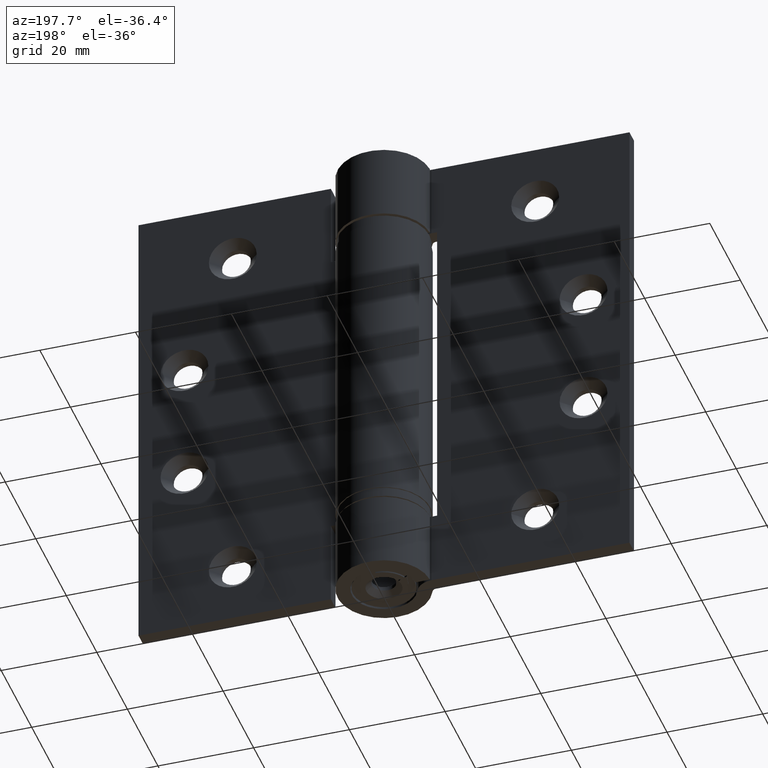
[diagram: clean part render]
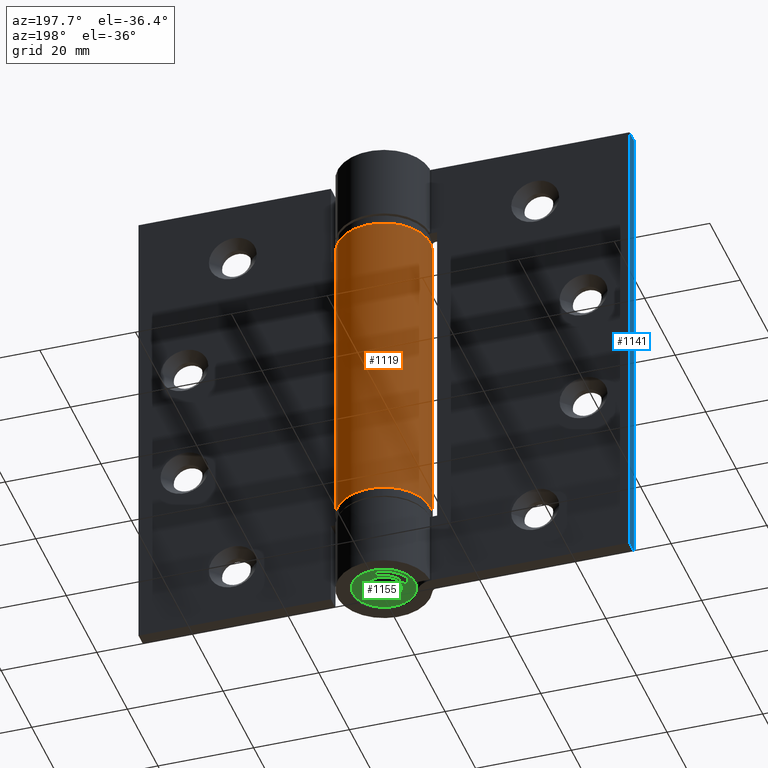
[diagram: same view with three faces highlighted in distinct colors, each labeled with its STEP entity id]
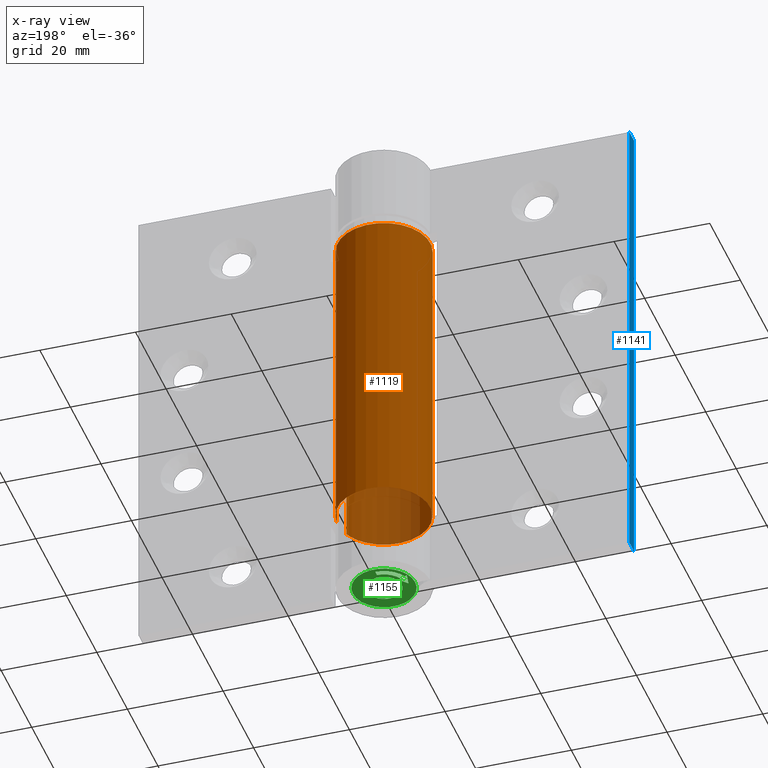
[diagram: x-ray of the same camera — body ghosted, the three highlighted faces saturated]
A machine part, auxiliary view with three faces highlighted in distinct colors.
The next image is the same camera in x-ray (body ghosted, the three faces saturated) — at least one of them is partly hidden behind the body in this view.
Their STEP definitions:

[orange] entity #1119 — the highlighted cylindrical surface (partial cylindrical patch) has radius 9.7 mm, axis along (0, 0, 1).
#125=CYLINDRICAL_SURFACE('',#1213,9.7);
#147=CIRCLE('',#1176,9.7);
#150=CIRCLE('',#1181,9.7);
#229=FACE_OUTER_BOUND('',#313,.T.);
#313=EDGE_LOOP('',(#878,#879,#880,#881));
#411=LINE('',#1782,#488);
#414=LINE('',#1788,#491);
#488=VECTOR('',#1418,65.3);
#491=VECTOR('',#1427,65.3);
#548=VERTEX_POINT('',#1700);
#549=VERTEX_POINT('',#1702);
#556=VERTEX_POINT('',#1719);
#557=VERTEX_POINT('',#1721);
#654=EDGE_CURVE('',#549,#548,#147,.T.);
#663=EDGE_CURVE('',#557,#556,#150,.T.);
#690=EDGE_CURVE('',#548,#557,#411,.T.);
#693=EDGE_CURVE('',#556,#549,#414,.T.);
#878=ORIENTED_EDGE('',*,*,#654,.T.);
#879=ORIENTED_EDGE('',*,*,#690,.T.);
#880=ORIENTED_EDGE('',*,*,#663,.T.);
#881=ORIENTED_EDGE('',*,*,#693,.T.);
#1119=ADVANCED_FACE('',(#229),#125,.T.);
#1176=AXIS2_PLACEMENT_3D('',#1703,#1332,#1333);
#1181=AXIS2_PLACEMENT_3D('',#1722,#1348,#1349);
#1213=AXIS2_PLACEMENT_3D('',#1789,#1428,#1429);
#1332=DIRECTION('center_axis',(0.,0.,-1.));
#1333=DIRECTION('ref_axis',(0.999390827019096,0.0348994967025013,0.));
#1348=DIRECTION('center_axis',(0.,0.,1.));
#1349=DIRECTION('ref_axis',(0.999390827019096,0.0348994967025013,0.));
#1418=DIRECTION('',(0.,0.,-1.));
#1427=DIRECTION('',(0.,0.,1.));
#1428=DIRECTION('center_axis',(0.,0.,1.));
#1429=DIRECTION('ref_axis',(-0.984880210934085,0.173236745843461,0.));
#1700=CARTESIAN_POINT('',(9.69409102208523,0.338525118014262,32.65));
#1702=CARTESIAN_POINT('',(8.99671629035193,-3.62616822429907,32.65));
#1703=CARTESIAN_POINT('Origin',(0.,0.,32.65));
#1719=CARTESIAN_POINT('',(8.99671629035193,-3.62616822429907,-32.65));
#1721=CARTESIAN_POINT('',(9.69409102208523,0.338525118014262,-32.65));
#1722=CARTESIAN_POINT('Origin',(0.,0.,-32.65));
#1782=CARTESIAN_POINT('',(9.69409102208523,0.338525118014262,0.));
#1788=CARTESIAN_POINT('',(8.99671629035193,-3.62616822429907,0.));
#1789=CARTESIAN_POINT('Origin',(0.,0.,0.));

[blue] entity #1141 — the highlighted planar face has unit normal (-1, -0, -0).
#251=FACE_OUTER_BOUND('',#347,.T.);
#347=EDGE_LOOP('',(#970,#971,#972,#973));
#427=LINE('',#1834,#504);
#440=LINE('',#1906,#517);
#442=LINE('',#1912,#519);
#443=LINE('',#1913,#520);
#504=VECTOR('',#1468,101.5);
#517=VECTOR('',#1553,3.);
#519=VECTOR('',#1559,3.);
#520=VECTOR('',#1560,101.5);
#594=VERTEX_POINT('',#1831);
#595=VERTEX_POINT('',#1833);
#618=VERTEX_POINT('',#1905);
#620=VERTEX_POINT('',#1911);
#714=EDGE_CURVE('',#595,#594,#427,.T.);
#746=EDGE_CURVE('',#595,#618,#440,.T.);
#749=EDGE_CURVE('',#620,#594,#442,.T.);
#750=EDGE_CURVE('',#618,#620,#443,.T.);
#970=ORIENTED_EDGE('',*,*,#714,.T.);
#971=ORIENTED_EDGE('',*,*,#749,.F.);
#972=ORIENTED_EDGE('',*,*,#750,.F.);
#973=ORIENTED_EDGE('',*,*,#746,.F.);
#1083=PLANE('',#1264);
#1141=ADVANCED_FACE('',(#251),#1083,.T.);
#1264=AXIS2_PLACEMENT_3D('',#1910,#1557,#1558);
#1468=DIRECTION('',(0.,0.,1.));
#1553=DIRECTION('',(0.,-1.,0.));
#1557=DIRECTION('center_axis',(1.,0.,0.));
#1558=DIRECTION('ref_axis',(0.,1.,0.));
#1559=DIRECTION('',(0.,1.,0.));
#1560=DIRECTION('',(0.,0.,1.));
#1831=CARTESIAN_POINT('',(51.3,3.60822483003176E-15,50.75));
#1833=CARTESIAN_POINT('',(51.3,3.60822483003176E-15,-50.75));
#1834=CARTESIAN_POINT('',(51.3,3.62301706460752E-15,0.));
#1905=CARTESIAN_POINT('',(51.3,-3.,-50.75));
#1906=CARTESIAN_POINT('',(51.3,-3.,-50.75));
#1910=CARTESIAN_POINT('Origin',(51.3,-3.,0.));
#1911=CARTESIAN_POINT('',(51.3,-3.,50.75));
#1912=CARTESIAN_POINT('',(51.3,-3.,50.75));
#1913=CARTESIAN_POINT('',(51.3,-3.,0.));

[green] entity #1155 — the highlighted planar face has unit normal (0, -0, -1).
#114=FACE_BOUND('',#373,.T.);
#115=FACE_BOUND('',#374,.T.);
#200=CIRCLE('',#1287,3.7);
#202=CIRCLE('',#1291,6.5);
#203=CIRCLE('',#1292,4.55);
#204=CIRCLE('',#1293,5.65);
#265=FACE_OUTER_BOUND('',#372,.T.);
#372=EDGE_LOOP('',(#1018));
#373=EDGE_LOOP('',(#1019,#1020,#1021,#1022,#1023,#1024,#1025));
#374=EDGE_LOOP('',(#1026));
#447=LINE('',#1956,#524);
#448=LINE('',#1958,#525);
#449=LINE('',#1962,#526);
#450=LINE('',#1966,#527);
#451=LINE('',#1967,#528);
#524=VECTOR('',#1618,2.29432213469809);
#525=VECTOR('',#1619,0.600000000000006);
#526=VECTOR('',#1622,1.1);
#527=VECTOR('',#1625,0.600000000000005);
#528=VECTOR('',#1626,2.74934804060223);
#628=VERTEX_POINT('',#1946);
#630=VERTEX_POINT('',#1952);
#631=VERTEX_POINT('',#1954);
#632=VERTEX_POINT('',#1955);
#633=VERTEX_POINT('',#1957);
#634=VERTEX_POINT('',#1959);
#635=VERTEX_POINT('',#1961);
#636=VERTEX_POINT('',#1963);
#637=VERTEX_POINT('',#1965);
#761=EDGE_CURVE('',#628,#628,#200,.T.);
#763=EDGE_CURVE('',#630,#630,#202,.T.);
#764=EDGE_CURVE('',#631,#632,#447,.T.);
#765=EDGE_CURVE('',#632,#633,#448,.T.);
#766=EDGE_CURVE('',#633,#634,#203,.T.);
#767=EDGE_CURVE('',#634,#635,#449,.T.);
#768=EDGE_CURVE('',#635,#636,#204,.T.);
#769=EDGE_CURVE('',#636,#637,#450,.T.);
#770=EDGE_CURVE('',#637,#631,#451,.T.);
#1018=ORIENTED_EDGE('',*,*,#763,.T.);
#1019=ORIENTED_EDGE('',*,*,#764,.T.);
#1020=ORIENTED_EDGE('',*,*,#765,.T.);
#1021=ORIENTED_EDGE('',*,*,#766,.T.);
#1022=ORIENTED_EDGE('',*,*,#767,.T.);
#1023=ORIENTED_EDGE('',*,*,#768,.T.);
#1024=ORIENTED_EDGE('',*,*,#769,.T.);
#1025=ORIENTED_EDGE('',*,*,#770,.T.);
#1026=ORIENTED_EDGE('',*,*,#761,.F.);
#1090=PLANE('',#1290);
#1155=ADVANCED_FACE('',(#265,#114,#115),#1090,.T.);
#1287=AXIS2_PLACEMENT_3D('',#1947,#1608,#1609);
#1290=AXIS2_PLACEMENT_3D('',#1951,#1614,#1615);
#1291=AXIS2_PLACEMENT_3D('',#1953,#1616,#1617);
#1292=AXIS2_PLACEMENT_3D('',#1960,#1620,#1621);
#1293=AXIS2_PLACEMENT_3D('',#1964,#1623,#1624);
#1608=DIRECTION('center_axis',(0.,0.,1.));
#1609=DIRECTION('ref_axis',(-1.,0.,0.));
#1614=DIRECTION('center_axis',(0.,0.,1.));
#1615=DIRECTION('ref_axis',(1.,0.,0.));
#1616=DIRECTION('center_axis',(0.,0.,1.));
#1617=DIRECTION('ref_axis',(1.,0.,0.));
#1618=DIRECTION('',(0.669658859007771,-0.742668844474043,0.));
#1619=DIRECTION('',(-0.902173887868811,-0.431372549019608,0.));
#1620=DIRECTION('center_axis',(0.,0.,1.));
#1621=DIRECTION('ref_axis',(0.902173887868811,0.431372549019608,0.));
#1622=DIRECTION('',(0.,-1.,0.));
#1623=DIRECTION('center_axis',(0.,0.,-1.));
#1624=DIRECTION('ref_axis',(-0.902173887868811,-0.431372549019608,0.));
#1625=DIRECTION('',(-0.902173887868811,-0.431372549019609,0.));
#1626=DIRECTION('',(0.195896187469264,0.980624639571639,0.));
#1946=CARTESIAN_POINT('',(3.7,4.53119315684521E-16,1.));
#1947=CARTESIAN_POINT('Origin',(0.,0.,1.));
#1951=CARTESIAN_POINT('Origin',(0.,0.,1.));
#1952=CARTESIAN_POINT('',(-6.5,-7.96020419445779E-16,1.));
#1953=CARTESIAN_POINT('Origin',(0.,0.,1.));
#1954=CARTESIAN_POINT('',(-5.1,0.,1.));
#1955=CARTESIAN_POINT('',(-3.5635868570818,-1.70392156862745,1.));
#1956=CARTESIAN_POINT('',(-3.18826381054955,-2.12016445039205,1.));
#1957=CARTESIAN_POINT('',(-4.10489118980309,-1.96274509803922,1.));
#1958=CARTESIAN_POINT('',(-2.05244559490154,-0.981372549019609,1.));
#1959=CARTESIAN_POINT('',(0.,-4.55,1.));
#1960=CARTESIAN_POINT('Origin',(0.,0.,1.));
#1961=CARTESIAN_POINT('',(0.,-5.65,1.));
#1962=CARTESIAN_POINT('',(0.,-2.825,1.));
#1963=CARTESIAN_POINT('',(-5.09728246645878,-2.43725490196078,1.));
#1964=CARTESIAN_POINT('Origin',(0.,0.,1.));
#1965=CARTESIAN_POINT('',(-5.63858679918007,-2.69607843137255,1.));
#1966=CARTESIAN_POINT('',(-2.81929339959004,-1.34803921568627,1.));
#1967=CARTESIAN_POINT('',(-5.00214294352427,0.489856601987789,1.));